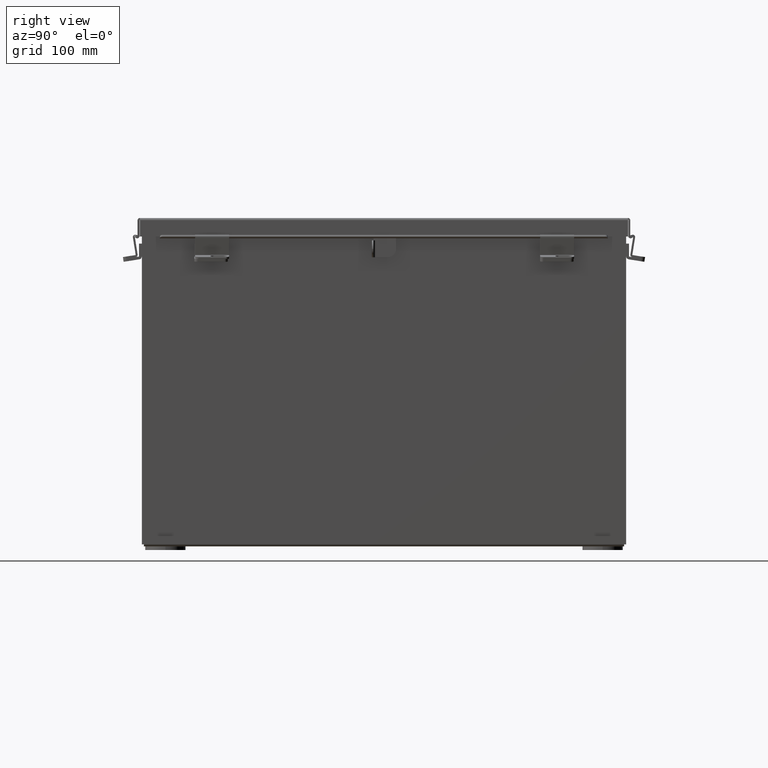
[diagram: clean part render]
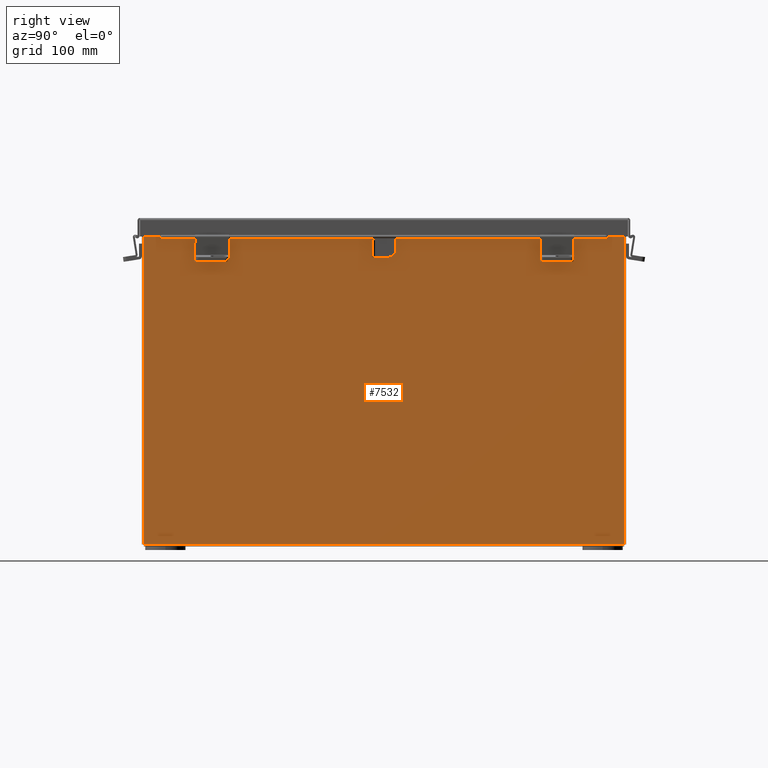
[diagram: same view with one face highlighted and labeled with its STEP entity id]
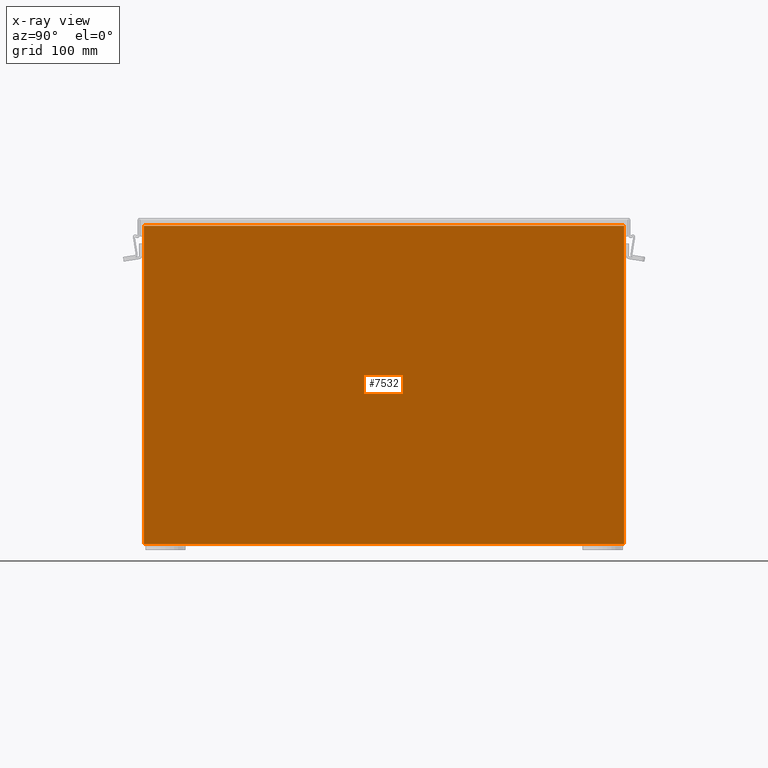
[diagram: x-ray of the same camera — body ghosted, the highlighted face saturated]
A machine part, right view. The second image highlights one B-rep face of the part: STEP entity #7532.
The next image is the same camera in x-ray: the body ghosted, the highlighted face saturated — about 0% of this face is hidden behind the body in this view.
In plain terms, the highlighted planar face has unit normal (-1, 0, 0).
Its self-contained STEP definition (entity closure, byte-faithful):
#209 = EDGE_CURVE ( 'NONE', #14095, #17061, #17306, .T. ) ;
#332 = VERTEX_POINT ( 'NONE', #19132 ) ;
#466 = DIRECTION ( 'NONE',  ( -0.0000000000000000000, -1.000000000000000000, -0.0000000000000000000 ) ) ;
#1277 = VECTOR ( 'NONE', #466, 39.37007874015748100 ) ;
#2388 = CARTESIAN_POINT ( 'NONE',  ( 6.000000000000040900, 8.925299999999992900, 11.83760000000000000 ) ) ;
#2434 = CARTESIAN_POINT ( 'NONE',  ( 5.999999999999999100, 8.925299999999996500, 0.01299999999999984300 ) ) ;
#2604 = VERTEX_POINT ( 'NONE', #2434 ) ;
#3155 = DIRECTION ( 'NONE',  ( -3.503965158194252900E-015, 0.0000000000000000000, -1.000000000000000000 ) ) ;
#4990 = ORIENTED_EDGE ( 'NONE', *, *, #209, .T. ) ;
#5381 = FACE_OUTER_BOUND ( 'NONE', #18718, .T. ) ;
#5864 = VECTOR ( 'NONE', #11378, 39.37007874015748100 ) ;
#6166 = VECTOR ( 'NONE', #18656, 39.37007874015748100 ) ;
#6714 = CARTESIAN_POINT ( 'NONE',  ( 5.999999999999999100, 8.925299999999996500, -2.046324887754137100E-014 ) ) ;
#7532 = ADVANCED_FACE ( 'NONE', ( #5381 ), #8692, .F. ) ;
#7854 = VECTOR ( 'NONE', #3155, 39.37007874015748100 ) ;
#8344 = LINE ( 'NONE', #16891, #1277 ) ;
#8692 = PLANE ( 'NONE',  #18011 ) ;
#9651 = EDGE_CURVE ( 'NONE', #2604, #332, #8344, .T. ) ;
#10143 = LINE ( 'NONE', #6714, #6166 ) ;
#10154 = EDGE_CURVE ( 'NONE', #17061, #332, #15781, .T. ) ;
#10188 = DIRECTION ( 'NONE',  ( 3.503965158194252100E-015, 0.0000000000000000000, 1.000000000000000000 ) ) ;
#11378 = DIRECTION ( 'NONE',  ( -0.0000000000000000000, -1.000000000000000000, -0.0000000000000000000 ) ) ;
#11524 = EDGE_CURVE ( 'NONE', #2604, #14095, #10143, .T. ) ;
#12054 = CARTESIAN_POINT ( 'NONE',  ( 6.000000000000040900, -8.925300000000001800, 11.83760000000000000 ) ) ;
#12482 = ORIENTED_EDGE ( 'NONE', *, *, #9651, .F. ) ;
#12547 = ORIENTED_EDGE ( 'NONE', *, *, #11524, .T. ) ;
#13079 = CARTESIAN_POINT ( 'NONE',  ( 6.000000000000040900, 8.925299999999987600, 11.83760000000000000 ) ) ;
#13143 = CARTESIAN_POINT ( 'NONE',  ( 5.999999999999999100, 0.0000000000000000000, -2.128280327564064900E-014 ) ) ;
#13627 = CARTESIAN_POINT ( 'NONE',  ( 5.999999999999999100, -8.925300000000003600, -2.128280327564064900E-014 ) ) ;
#14095 = VERTEX_POINT ( 'NONE', #13079 ) ;
#14540 = ORIENTED_EDGE ( 'NONE', *, *, #10154, .T. ) ;
#15781 = LINE ( 'NONE', #13627, #7854 ) ;
#16891 = CARTESIAN_POINT ( 'NONE',  ( 5.999999999999999100, -8.925300000000003600, 0.01299999999999984300 ) ) ;
#17061 = VERTEX_POINT ( 'NONE', #12054 ) ;
#17306 = LINE ( 'NONE', #2388, #5864 ) ;
#18011 = AXIS2_PLACEMENT_3D ( 'NONE', #13143, #19117, #10188 ) ;
#18656 = DIRECTION ( 'NONE',  ( 3.503965158194252900E-015, -9.220960942616452700E-017, 1.000000000000000000 ) ) ;
#18718 = EDGE_LOOP ( 'NONE', ( #4990, #14540, #12482, #12547 ) ) ;
#19117 = DIRECTION ( 'NONE',  ( -1.000000000000000000, 0.0000000000000000000, 3.503965158194252100E-015 ) ) ;
#19132 = CARTESIAN_POINT ( 'NONE',  ( 5.999999999999999100, -8.925300000000003600, 0.01299999999999984300 ) ) ;